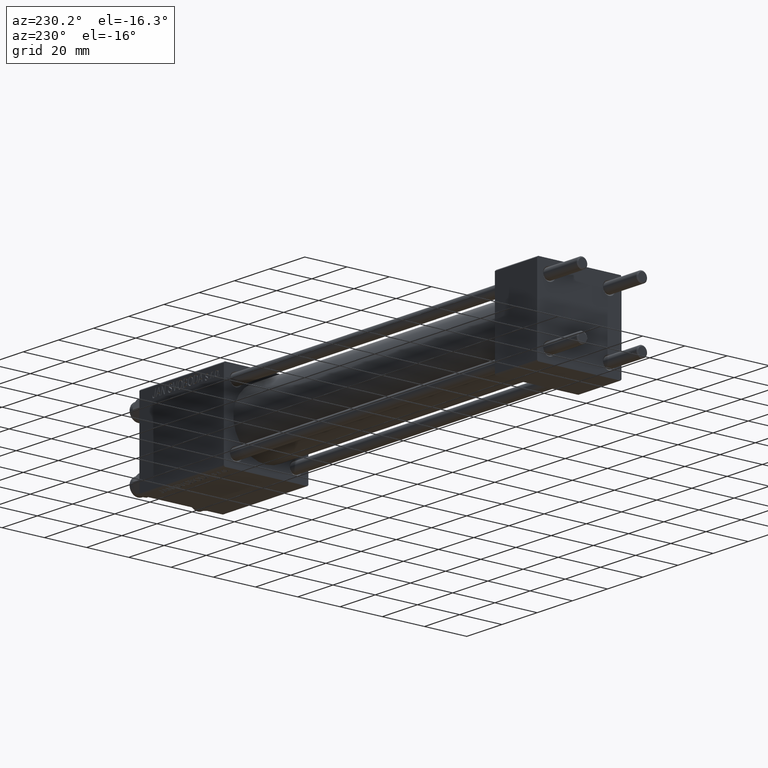
[diagram: clean part render]
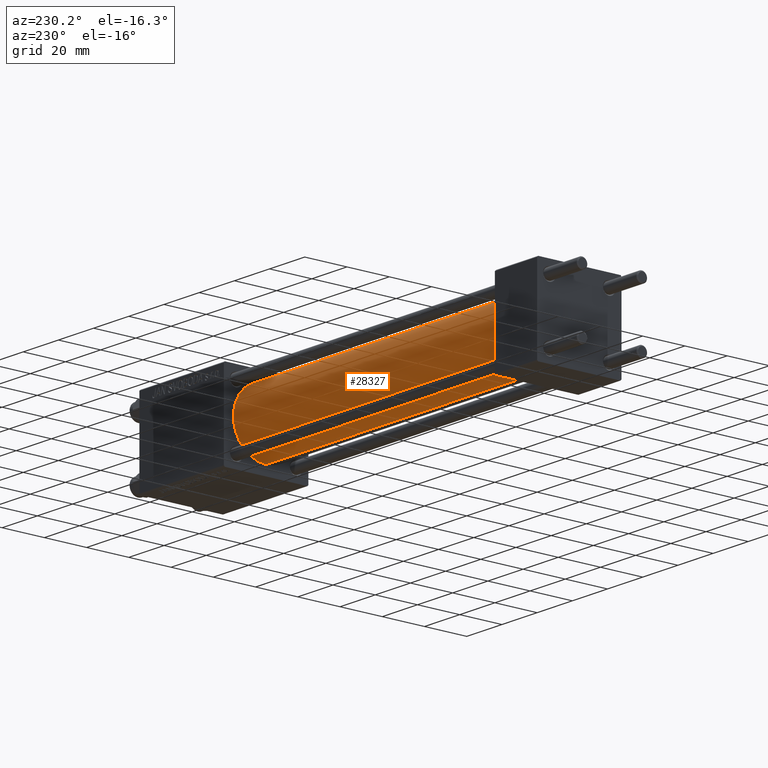
[diagram: same view with one face highlighted and labeled with its STEP entity id]
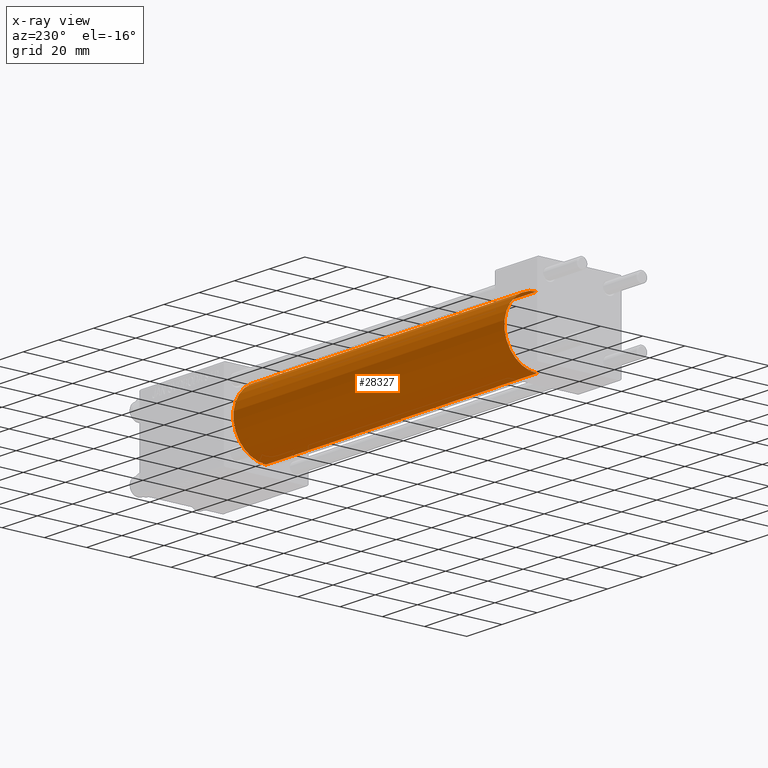
[diagram: x-ray of the same camera — body ghosted, the highlighted face saturated]
A machine part, auxiliary view. The second image highlights one B-rep face of the part: STEP entity #28327.
The next image is the same camera in x-ray: the body ghosted, the highlighted face saturated — about 0% of this face is hidden behind the body in this view.
In plain terms, the highlighted cylindrical surface (partial cylindrical patch) has radius 15.5 mm, axis along (-1, -0, -0).
Its self-contained STEP definition (entity closure, byte-faithful):
#3707 = EDGE_CURVE ( 'NONE', #49690, #40951, #42777, .T. ) ;
#5285 = VERTEX_POINT ( 'NONE', #6435 ) ;
#6154 = CIRCLE ( 'NONE', #11848, 15.50000000000000000 ) ;
#6435 = CARTESIAN_POINT ( 'NONE',  ( 178.0000000000000000, 1.898202538678397557E-15, -15.50000000000000000 ) ) ;
#6773 = DIRECTION ( 'NONE',  ( 1.000000000000000000, 0.000000000000000000, 0.000000000000000000 ) ) ;
#7842 = CARTESIAN_POINT ( 'NONE',  ( 178.0000000000000000, 0.000000000000000000, 0.000000000000000000 ) ) ;
#10367 = ORIENTED_EDGE ( 'NONE', *, *, #17904, .T. ) ;
#10401 = CARTESIAN_POINT ( 'NONE',  ( 23.99999999999999289, 0.000000000000000000, 15.50000000000000000 ) ) ;
#11599 = DIRECTION ( 'NONE',  ( -1.000000000000000000, -0.000000000000000000, -0.000000000000000000 ) ) ;
#11848 = AXIS2_PLACEMENT_3D ( 'NONE', #45413, #6773, #18133 ) ;
#12630 = DIRECTION ( 'NONE',  ( -1.000000000000000000, -0.000000000000000000, -0.000000000000000000 ) ) ;
#13992 = EDGE_CURVE ( 'NONE', #5285, #34899, #16916, .T. ) ;
#14279 = AXIS2_PLACEMENT_3D ( 'NONE', #7842, #12630, #16156 ) ;
#14876 = AXIS2_PLACEMENT_3D ( 'NONE', #15893, #39115, #24447 ) ;
#15893 = CARTESIAN_POINT ( 'NONE',  ( 23.99999999999999289, 0.000000000000000000, 0.000000000000000000 ) ) ;
#16156 = DIRECTION ( 'NONE',  ( 0.000000000000000000, 0.000000000000000000, 1.000000000000000000 ) ) ;
#16916 = LINE ( 'NONE', #37593, #22818 ) ;
#16947 = VECTOR ( 'NONE', #26870, 1000.000000000000000 ) ;
#16982 = ORIENTED_EDGE ( 'NONE', *, *, #13992, .T. ) ;
#17879 = CARTESIAN_POINT ( 'NONE',  ( 178.0000000000000000, 0.000000000000000000, 15.50000000000000000 ) ) ;
#17904 = EDGE_CURVE ( 'NONE', #34899, #40951, #21303, .T. ) ;
#18133 = DIRECTION ( 'NONE',  ( 0.000000000000000000, 0.000000000000000000, -1.000000000000000000 ) ) ;
#19040 = CARTESIAN_POINT ( 'NONE',  ( 178.0000000000000000, 0.000000000000000000, 15.50000000000000000 ) ) ;
#21303 = CIRCLE ( 'NONE', #14876, 15.50000000000000000 ) ;
#22818 = VECTOR ( 'NONE', #11599, 1000.000000000000000 ) ;
#24447 = DIRECTION ( 'NONE',  ( 0.000000000000000000, 0.000000000000000000, 1.000000000000000000 ) ) ;
#25123 = ORIENTED_EDGE ( 'NONE', *, *, #3707, .F. ) ;
#26709 = EDGE_CURVE ( 'NONE', #5285, #49690, #6154, .T. ) ;
#26870 = DIRECTION ( 'NONE',  ( -1.000000000000000000, -0.000000000000000000, -0.000000000000000000 ) ) ;
#27031 = FACE_OUTER_BOUND ( 'NONE', #29195, .T. ) ;
#28327 = ADVANCED_FACE ( 'NONE', ( #27031 ), #42443, .T. ) ;
#29195 = EDGE_LOOP ( 'NONE', ( #39456, #16982, #10367, #25123 ) ) ;
#34899 = VERTEX_POINT ( 'NONE', #40650 ) ;
#37593 = CARTESIAN_POINT ( 'NONE',  ( 178.0000000000000000, 1.898202538678397557E-15, -15.50000000000000000 ) ) ;
#39115 = DIRECTION ( 'NONE',  ( 1.000000000000000000, 0.000000000000000000, 0.000000000000000000 ) ) ;
#39456 = ORIENTED_EDGE ( 'NONE', *, *, #26709, .F. ) ;
#40650 = CARTESIAN_POINT ( 'NONE',  ( 23.99999999999999289, 1.898202538678397557E-15, -15.50000000000000000 ) ) ;
#40951 = VERTEX_POINT ( 'NONE', #10401 ) ;
#42443 = CYLINDRICAL_SURFACE ( 'NONE', #14279, 15.50000000000000000 ) ;
#42777 = LINE ( 'NONE', #19040, #16947 ) ;
#45413 = CARTESIAN_POINT ( 'NONE',  ( 178.0000000000000000, 0.000000000000000000, 0.000000000000000000 ) ) ;
#49690 = VERTEX_POINT ( 'NONE', #17879 ) ;